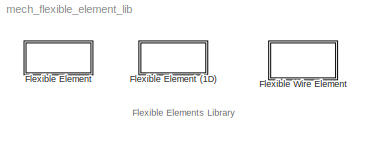
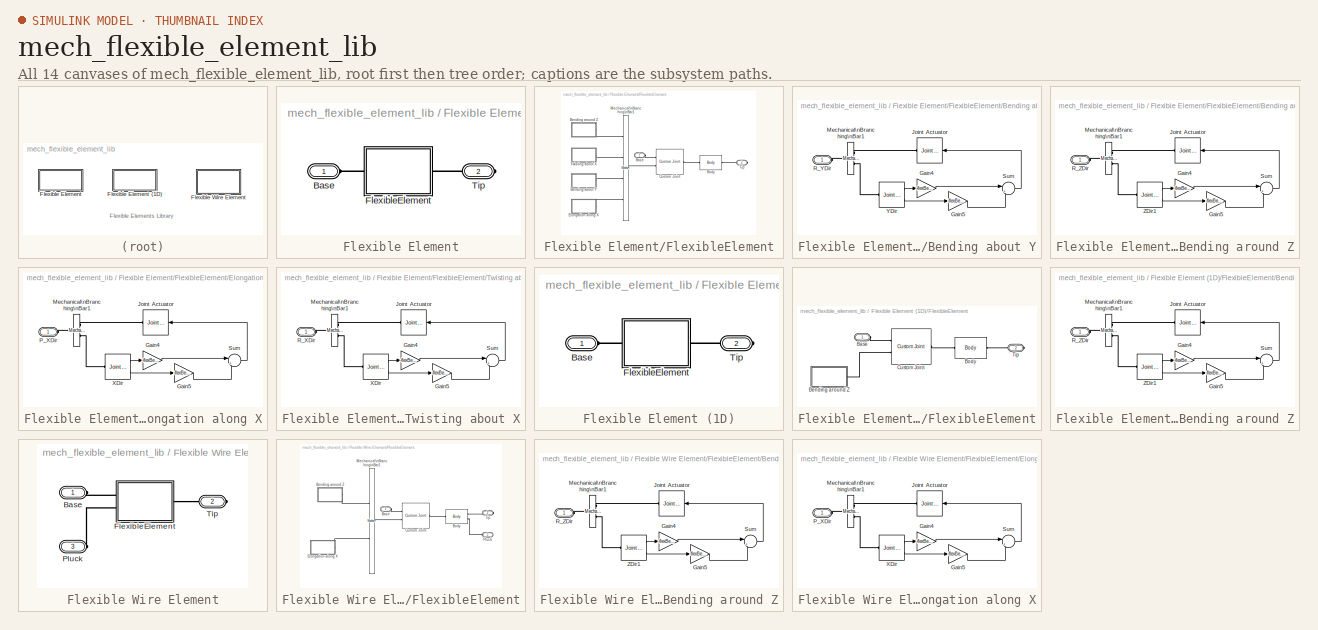
[diagram: thumbnail index - all 14 canvases of the model, root first then tree order]
MODEL mech_flexible_element_lib
KIND library
CONFIG PostLoadFcn = find_system(gcs,'FollowLinks', 'on', 'LookUnderMasks', 'all');\nlastwarn('');\nwarning(oldWarningState);
CONFIG PreLoadFcn = oldWarningState = warning('query');\nwarning('off');
BLOCK [SubSystem] Flexible Element
  FunctionWithSeparateData = off
  MaskCallbackString = |||||||||||
  MaskEnableString = on,on,on,on,on,on,on,on,on,on,on,on
  MaskHideContents = off
  MaskIconFrame = on
  MaskIconOpaque = on
  MaskIconRotate = none
  MaskIconUnits = autoscale
  MaskInitialization = flexBeamElement.material    = material;\nflexBeamElement.density     = density;\nflexBeamElement.crossArea   = crossArea;\nflexBeamElement.length      = length;\nflexBeamElement.cgLeng      = cgLeng;\nflexBeamElement.beamDir     = beamDir;\nflexBeamElement.Inertia     = Inertia;\nflexBeamElement.youngsM     = youngsM;\nflexBeamElement.shearM      = shearM;\nflexBeamElement.Ixx         = Ixx;\nflex...<+138ch>
  MaskPromptString = Beam Material|Material Density (Kg/m^3)|Area of cross-section (m^2)|Length of single element (m)|Distance of CG along length of beam element (m)|Direction of beam element (X direction will be [1 0 0])|Mass Moment of Inertia of beam element (Kg/m^2)|Youngs Modulus (N/m^2)|Shear Modulus (N/m^2)|Area Moment of Inertia along the direction of bending (m^4)|Area Moment of Inertia normal to the direction...<+48ch>
  MaskStyleString = edit,edit,edit,edit,edit,edit,edit,edit,edit,edit,edit,edit
  MaskTabNameString = ,,,,,,,,,,,
  MaskToolTipString = on,on,on,on,on,on,on,on,on,on,on,on
  MaskTunableValueString = off,on,on,on,on,on,on,on,on,on,on,on
  MaskValueString = Mild Steel|7600|1E-4|0.15|0.075|[1 0 0]|[120 0 0;0 6400.0 0;0 0 6400.0]*1E-7|200E9|26E9|8.3333e-010|8.3333e-010|0.35
  MaskVarAliasString = ,,,,,,,,,,,
  MaskVariables = material=&1;density=@2;crossArea=@3;length=@4;cgLeng=@5;beamDir=@6;Inertia=@7;youngsM=@8;shearM=@9;Ixx=@10;Iyy=@11;matDamping=@12;
  MaskVisibilityString = on,on,on,on,on,on,on,on,on,on,on,on
  MinAlgLoopOccurrences = off
  Opaque = off
  Ports = [0, 0, 0, 0, 0, 1, 1]
  PropExecContextOutsideSubsystem = off
  RTWSystemCode = Auto
  RequestExecContextInheritance = off
BLOCK [SubSystem] Flexible Element (1D)
  AncestorBlock = mech_flexible_element_lib/Flexible Element
  FunctionWithSeparateData = off
  MaskCallbackString = |||||||||||
  MaskEnableString = on,on,on,on,on,on,on,on,on,on,on,on
  MaskHideContents = off
  MaskIconFrame = on
  MaskIconOpaque = on
  MaskIconRotate = none
  MaskIconUnits = autoscale
  MaskInitialization = flexBeamElement.material    = material;\nflexBeamElement.density     = density;\nflexBeamElement.crossArea   = crossArea;\nflexBeamElement.length      = length;\nflexBeamElement.cgLeng      = cgLeng;\nflexBeamElement.beamDir     = beamDir;\nflexBeamElement.Inertia     = Inertia;\nflexBeamElement.youngsM     = youngsM;\nflexBeamElement.shearM      = shearM;\nflexBeamElement.Ixx         = Ixx;\nflex...<+138ch>
  MaskPromptString = Beam Material|Material Density (Kg/m^3)|Area of cross-section (m^2)|Length of single element (m)|Distance of CG along length of beam element (m)|Direction of beam element (X direction will be [1 0 0])|Mass Moment of Inertia of beam element (Kg/m^2)|Youngs Modulus (N/m^2)|Shear Modulus (N/m^2)|Area Moment of Inertia along the direction of bending (m^4)|Area Moment of Inertia normal to the direction...<+48ch>
  MaskStyleString = edit,edit,edit,edit,edit,edit,edit,edit,edit,edit,edit,edit
  MaskTabNameString = ,,,,,,,,,,,
  MaskToolTipString = on,on,on,on,on,on,on,on,on,on,on,on
  MaskTunableValueString = off,on,on,on,on,on,on,on,on,on,on,on
  MaskValueString = Mild Steel|7600|1E-4|0.15|0.075|[1 0 0]|[120 0 0;0 6400.0 0;0 0 6400.0]*1E-7|200E9|26E9|8.3333e-010|8.3333e-010|0.35
  MaskVarAliasString = ,,,,,,,,,,,
  MaskVariables = material=&1;density=@2;crossArea=@3;length=@4;cgLeng=@5;beamDir=@6;Inertia=@7;youngsM=@8;shearM=@9;Ixx=@10;Iyy=@11;matDamping=@12;
  MaskVisibilityString = on,on,on,on,on,on,on,on,off,on,off,on
  MinAlgLoopOccurrences = off
  Opaque = off
  Ports = [0, 0, 0, 0, 0, 1, 1]
  PropExecContextOutsideSubsystem = off
  RTWSystemCode = Auto
  RequestExecContextInheritance = off
BLOCK [PMIOPort] Flexible Element (1D)/Base
  Port = 1
  Side = Left
BLOCK [SubSystem] Flexible Element (1D)/FlexibleElement
  FunctionWithSeparateData = off
  MaskHideContents = off
  MinAlgLoopOccurrences = off
  Opaque = off
  Ports = [0, 0, 0, 0, 0, 1, 1]
  PropExecContextOutsideSubsystem = off
  RTWSystemCode = Auto
  RequestExecContextInheritance = off
BLOCK [PMIOPort] Flexible Element (1D)/FlexibleElement/Base
  Port = 1
  Side = Left
BLOCK [SubSystem] Flexible Element (1D)/FlexibleElement/Bending around Z
  FunctionWithSeparateData = off
  MaskHideContents = off
  MinAlgLoopOccurrences = off
  Opaque = off
  Ports = [0, 0, 0, 0, 0, 1]
  PropExecContextOutsideSubsystem = off
  RTWSystemCode = Auto
  RequestExecContextInheritance = off
BLOCK [Gain] Flexible Element (1D)/FlexibleElement/Bending around Z/Gain4
  Gain = -flexBeamElement.kBendingYY
  OutDataType = sfix(16)
  OutDataTypeMode = Inherit via internal rule
  OutDataTypeStr = Inherit: Inherit via internal rule
  OutScaling = 2^0
  ParamDataTypeStr = Inherit: Inherit via internal rule
  ParameterDataType = sfix(16)
  ParameterDataTypeMode = Inherit via internal rule
  ParameterScaling = 2^0
  SaturateOnIntegerOverflow = off
BLOCK [Gain] Flexible Element (1D)/FlexibleElement/Bending around Z/Gain5
  Gain = -flexBeamElement.matDamping
  OutDataType = sfix(16)
  OutDataTypeMode = Inherit via internal rule
  OutDataTypeStr = Inherit: Inherit via internal rule
  OutScaling = 2^0
  ParamDataTypeStr = Inherit: Inherit via internal rule
  ParameterDataType = sfix(16)
  ParameterDataTypeMode = Inherit via internal rule
  ParameterScaling = 2^0
  SaturateOnIntegerOverflow = off
BLOCK [Reference] Flexible Element (1D)/FlexibleElement/Bending around Z/Joint Actuator  REF=mblibv1/Sensors & \nActuators/Joint Actuator
  AccelerationUnits = m/s^2
  ActiveIO = off
  ActuationStyle = Force
  AngleUnits = deg
  ArcAccelerationUnits = deg/s^2
  ArcVelocityUnits = deg/s
  ClassName = JointActuator
  CoordPositionUnits = m
  DialogClass = MechanicalActuatorBlock
  DialogController = MECH.DynMechDlgSource
  ForceUnits = N
  FunctionWithSeparateData = off
  PhysicalDomain = Mechanical
  PortType = blob
  Ports = [1, 0, 0, 0, 0, 0, 1]
  Primitive = R3
  RTWMemSecDataConstants = Inherit from model
  RTWMemSecDataInternal = Inherit from model
  RTWMemSecDataParameters = Inherit from model
  RTWMemSecFuncExecute = Inherit from model
  RTWMemSecFuncInitTerm = Inherit from model
  ReferenceFrame = Absolute (INERTIAL)
  ShowPortLabels = FromPortIcon
  SourceBlock = mblibv1/Sensors & \nActuators/Joint Actuator
  SourceType = Joint Actuator
  SystemSampleTime = -1
  TorqueUnits = N-m
  VelocityUnits = m/s
  Width = 1
BLOCK [Reference] Flexible Element (1D)/FlexibleElement/Bending around Z/Mechanical\nBranching\nBar1  REF=mblibv1/Utilities/Mechanical\nBranching\nBar
  ClassName = BranchingBar
  DialogClass = MechanicalBranchingBarBlock
  DialogController = MECH.DynMechDlgSource
  LConnTagsString = _newl0
  LeftPortType = blob
  NumSAPorts = 2
  PhysicalDomain = mechanical
  Ports = [0, 0, 0, 0, 0, 1, 2]
  RConnTagsString = SA0|SA1
  RightPortType = blob
  SourceBlock = mblibv1/Utilities/Mechanical\nBranching\nBar
  SourceType = Mechanical Branching Bar
  SubClassName = Unknown
BLOCK [PMIOPort] Flexible Element (1D)/FlexibleElement/Bending around Z/R_ZDir
  Port = 1
  Side = Left
BLOCK [Sum] Flexible Element (1D)/FlexibleElement/Bending around Z/Sum
  IconShape = round
  InputSameDT = off
  Inputs = |++
  OutDataType = sfix(16)
  OutDataTypeMode = Inherit via internal rule
  OutDataTypeStr = Inherit: Inherit via internal rule
  OutScaling = 2^0
  Ports = [2, 1]
  SaturateOnIntegerOverflow = off
BLOCK [Reference] Flexible Element (1D)/FlexibleElement/Bending around Z/ZDir1  REF=mblibv1/Sensors & \nActuators/Joint Sensor
  Acceleration = off
  AccelerationUnits = m/s^2
  ActiveIO = off
  Angle = on
  AngleUnits = rad
  ArcAcceleration = off
  ArcAccelerationUnits = deg/s^2
  ArcVelocity = on
  ArcVelocityUnits = rad/s
  ClassName = JointSensor
  CoordPosition = on
  CoordPositionUnits = m
  DialogClass = MechanicalSensorBlock
  DialogController = MECH.DynMechDlgSource
  Force = off
  ForceUnits = N
  FunctionWithSeparateData = off
  Muxed = off
  OutputVector = [ 1 1 ]
  PhysicalDomain = Mechanical
  PortType = blob
  Ports = [0, 2, 0, 0, 0, 1]
  Pose = off
  Primitive = R3
  Quaternion = on
  QuaternionDDT = off
  QuaternionDT = off
  QuaternionUnits = off
  RTWMemSecDataConstants = Inherit from model
  RTWMemSecDataInternal = Inherit from model
  RTWMemSecDataParameters = Inherit from model
  RTWMemSecFuncExecute = Inherit from model
  RTWMemSecFuncInitTerm = Inherit from model
  ReactionForce = off
  ReactionForceUnits = N
  ReactionMoment = off
  ReactionMomentUnits = N-m
  ReactionReferenceFrame = Absolute (World)
  ReactionSensedSide = Base
  ReferenceFrame = Absolute (INERTIAL)
  ShowPortLabels = FromPortIcon
  SourceBlock = mblibv1/Sensors & \nActuators/Joint Sensor
  SourceType = Joint Sensor
  SystemSampleTime = -1
  Torque = off
  TorqueUnits = N-m
  Velocity = off
  VelocityUnits = m/s
  Width = 2
BLOCK [Reference] Flexible Element (1D)/FlexibleElement/Body  REF=mblibv1/Bodies/Body
  AttachedToCS = 1
  BodyColor = [0.5 0.5 0.5]
  CG = Left$CG$flexBeamElement.cg$CS1$CS1$m$[0 0 0]$Euler X-Y-Z$deg$WORLD$false
  CGPos = flexBeamElement.cg
  CGRot = [0 0 0]
  CS0Pos = []
  CS0Rot = []
  CS10Pos = []
  CS10Rot = []
  CS11Pos = []
  CS11Rot = []
  CS12Pos = []
  CS12Rot = []
  CS13Pos = []
  CS13Rot = []
  CS14Pos = []
  CS14Rot = []
  CS15Pos = []
  CS15Rot = []
  CS16Pos = []
  CS16Rot = []
  CS17Pos = []
  CS17Rot = []
  CS18Pos = []
  CS18Rot = []
  CS19Pos = []
  CS19Rot = []
  CS1Pos = flexBeamElement.cs1
  CS1Rot = [0 0 0]
  CS20Pos = []
  CS20Rot = []
  CS2Pos = flexBeamElement.cs2
  CS2Rot = [0 0 0]
  CS3Pos = []
  CS3Rot = []
  CS4Pos = []
  CS4Rot = []
  CS5Pos = []
  CS5Rot = []
  CS6Pos = []
  CS6Rot = []
  CS7Pos = []
  CS7Rot = []
  CS8Pos = []
  CS8Rot = []
  CS9Pos = []
  CS9Rot = []
  ClassName = Body
  Density = 1
  DensityUnits = kg/m^3
  DensityUse = false
  DialogClass = MechanicalBodyBlock
  DialogController = MECH.DynMechDlgSource
  GraphicsMode = 1
  GraphicsObj = []
  Inertia = flexBeamElement.Inertia
  InertiaUnits = kg*m^2
  LConnTagsString = CS1
  LeftPortType = workingframe
  Mass = flexBeamElement.mass
  MassUnits = kg
  PhysicalDomain = mechanical
  Ports = [0, 0, 0, 0, 0, 1, 1]
  RConnTagsString = CS2
  RightPortType = workingframe
  Shape = Cylinder
  ShapeDims = [1 1]
  ShapeUnits = m
  ShapeUse = false
  SourceBlock = mblibv1/Bodies/Body
  SourceType = Body
  SubClassName = Unknown
  WorkingFrames = Left$CS1$flexBeamElement.cs1$ADJOINING$ADJOINING$m$[0 0 0]$Euler X-Y-Z$deg$WORLD$true#Right$CS2$flexBeamElement.cs2$CS1$CS1$m$[0 0 0]$Euler X-Y-Z$deg$WORLD$true
BLOCK [Reference] Flexible Element (1D)/FlexibleElement/Custom Joint  REF=mblibv1/Joints/Custom Joint
  ClassName = Joint
  CutJoint = off
  DialogClass = JointBlock
  DialogController = MECH.DynMechDlgSource
  LConnTagsString = __newl0|SA1
  LeftPortType = blob
  MarkAsCut = off
  NumSAPorts = 1
  P1Axis = []
  P2Axis = []
  P3Axis = []
  PhysicalDomain = mechanical
  Ports = [0, 0, 0, 0, 0, 2, 1]
  PrimitiveProps = R3$WORLD$flexBeamElement.zDir$revolute
  Primitives = revolute
  R1Axis = []
  R2Axis = []
  R3Axis = flexBeamElement.zDir
  RConnTagsString = __newr0
  RightPortType = blob
  SAxis = []
  SourceBlock = mblibv1/Joints/Custom Joint
  SourceType = Custom Joint
  SubClassName = custom_joint
BLOCK [PMIOPort] Flexible Element (1D)/FlexibleElement/Tip
  Port = 2
  Side = Right
BLOCK [PMIOPort] Flexible Element (1D)/Tip
  Port = 2
  Side = Right
BLOCK [PMIOPort] Flexible Element/Base
  Port = 1
  Side = Left
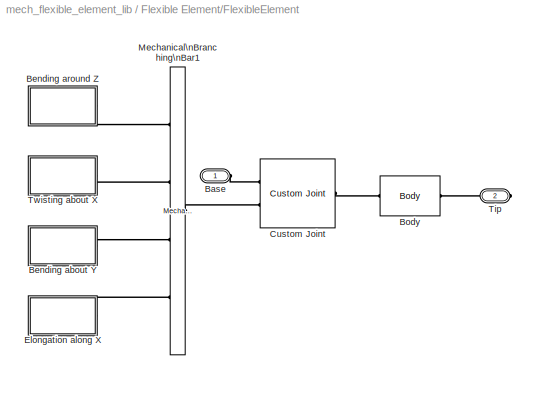
BLOCK [SubSystem] Flexible Element/FlexibleElement
  FunctionWithSeparateData = off
  MaskHideContents = off
  MinAlgLoopOccurrences = off
  Opaque = off
  Ports = [0, 0, 0, 0, 0, 1, 1]
  PropExecContextOutsideSubsystem = off
  RTWSystemCode = Auto
  RequestExecContextInheritance = off
BLOCK [PMIOPort] Flexible Element/FlexibleElement/Base
  Port = 1
  Side = Left
BLOCK [SubSystem] Flexible Element/FlexibleElement/Bending about Y
  FunctionWithSeparateData = off
  MaskHideContents = off
  MinAlgLoopOccurrences = off
  Opaque = off
  Ports = [0, 0, 0, 0, 0, 1]
  PropExecContextOutsideSubsystem = off
  RTWSystemCode = Auto
  RequestExecContextInheritance = off
BLOCK [Gain] Flexible Element/FlexibleElement/Bending about Y/Gain4
  Gain = -flexBeamElement.kBendingXX
  OutDataType = sfix(16)
  OutDataTypeMode = Inherit via internal rule
  OutDataTypeStr = Inherit: Inherit via internal rule
  OutScaling = 2^0
  ParamDataTypeStr = Inherit: Inherit via internal rule
  ParameterDataType = sfix(16)
  ParameterDataTypeMode = Inherit via internal rule
  ParameterScaling = 2^0
  SaturateOnIntegerOverflow = off
BLOCK [Gain] Flexible Element/FlexibleElement/Bending about Y/Gain5
  Gain = -flexBeamElement.matDamping
  OutDataType = sfix(16)
  OutDataTypeMode = Inherit via internal rule
  OutDataTypeStr = Inherit: Inherit via internal rule
  OutScaling = 2^0
  ParamDataTypeStr = Inherit: Inherit via internal rule
  ParameterDataType = sfix(16)
  ParameterDataTypeMode = Inherit via internal rule
  ParameterScaling = 2^0
  SaturateOnIntegerOverflow = off
BLOCK [Reference] Flexible Element/FlexibleElement/Bending about Y/Joint Actuator  REF=mblibv1/Sensors & \nActuators/Joint Actuator
  AccelerationUnits = m/s^2
  ActiveIO = off
  ActuationStyle = Force
  AngleUnits = deg
  ArcAccelerationUnits = deg/s^2
  ArcVelocityUnits = deg/s
  ClassName = JointActuator
  CoordPositionUnits = m
  DialogClass = MechanicalActuatorBlock
  DialogController = MECH.DynMechDlgSource
  ForceUnits = N
  FunctionWithSeparateData = off
  PhysicalDomain = Mechanical
  PortType = blob
  Ports = [1, 0, 0, 0, 0, 0, 1]
  Primitive = R2
  RTWMemSecDataConstants = Inherit from model
  RTWMemSecDataInternal = Inherit from model
  RTWMemSecDataParameters = Inherit from model
  RTWMemSecFuncExecute = Inherit from model
  RTWMemSecFuncInitTerm = Inherit from model
  ReferenceFrame = Absolute (INERTIAL)
  ShowPortLabels = FromPortIcon
  SourceBlock = mblibv1/Sensors & \nActuators/Joint Actuator
  SourceType = Joint Actuator
  SystemSampleTime = -1
  TorqueUnits = N-m
  VelocityUnits = m/s
  Width = 1
BLOCK [Reference] Flexible Element/FlexibleElement/Bending about Y/Mechanical\nBranching\nBar1  REF=mblibv1/Utilities/Mechanical\nBranching\nBar
  ClassName = BranchingBar
  DialogClass = MechanicalBranchingBarBlock
  DialogController = MECH.DynMechDlgSource
  LConnTagsString = _newl0
  LeftPortType = blob
  NumSAPorts = 2
  PhysicalDomain = mechanical
  Ports = [0, 0, 0, 0, 0, 1, 2]
  RConnTagsString = SA0|SA1
  RightPortType = blob
  SourceBlock = mblibv1/Utilities/Mechanical\nBranching\nBar
  SourceType = Mechanical Branching Bar
  SubClassName = Unknown
BLOCK [PMIOPort] Flexible Element/FlexibleElement/Bending about Y/R_YDir
  Port = 1
  Side = Left
BLOCK [Sum] Flexible Element/FlexibleElement/Bending about Y/Sum
  IconShape = round
  InputSameDT = off
  Inputs = |++
  OutDataType = sfix(16)
  OutDataTypeMode = Inherit via internal rule
  OutDataTypeStr = Inherit: Inherit via internal rule
  OutScaling = 2^0
  Ports = [2, 1]
  SaturateOnIntegerOverflow = off
BLOCK [Reference] Flexible Element/FlexibleElement/Bending about Y/YDir  REF=mblibv1/Sensors & \nActuators/Joint Sensor
  Acceleration = off
  AccelerationUnits = m/s^2
  ActiveIO = off
  Angle = on
  AngleUnits = rad
  ArcAcceleration = off
  ArcAccelerationUnits = deg/s^2
  ArcVelocity = on
  ArcVelocityUnits = rad/s
  ClassName = JointSensor
  CoordPosition = on
  CoordPositionUnits = m
  DialogClass = MechanicalSensorBlock
  DialogController = MECH.DynMechDlgSource
  Force = off
  ForceUnits = N
  FunctionWithSeparateData = off
  Muxed = off
  OutputVector = [ 1 1 ]
  PhysicalDomain = Mechanical
  PortType = blob
  Ports = [0, 2, 0, 0, 0, 1]
  Pose = off
  Primitive = R2
  Quaternion = on
  QuaternionDDT = off
  QuaternionDT = off
  QuaternionUnits = off
  RTWMemSecDataConstants = Inherit from model
  RTWMemSecDataInternal = Inherit from model
  RTWMemSecDataParameters = Inherit from model
  RTWMemSecFuncExecute = Inherit from model
  RTWMemSecFuncInitTerm = Inherit from model
  ReactionForce = off
  ReactionForceUnits = N
  ReactionMoment = off
  ReactionMomentUnits = N-m
  ReactionReferenceFrame = Absolute (World)
  ReactionSensedSide = Base
  ReferenceFrame = Absolute (INERTIAL)
  ShowPortLabels = FromPortIcon
  SourceBlock = mblibv1/Sensors & \nActuators/Joint Sensor
  SourceType = Joint Sensor
  SystemSampleTime = -1
  Torque = off
  TorqueUnits = N-m
  Velocity = off
  VelocityUnits = m/s
  Width = 2
BLOCK [SubSystem] Flexible Element/FlexibleElement/Bending around Z
  FunctionWithSeparateData = off
  MaskHideContents = off
  MinAlgLoopOccurrences = off
  Opaque = off
  Ports = [0, 0, 0, 0, 0, 1]
  PropExecContextOutsideSubsystem = off
  RTWSystemCode = Auto
  RequestExecContextInheritance = off
BLOCK [Gain] Flexible Element/FlexibleElement/Bending around Z/Gain4
  Gain = -flexBeamElement.kBendingYY
  OutDataType = sfix(16)
  OutDataTypeMode = Inherit via internal rule
  OutDataTypeStr = Inherit: Inherit via internal rule
  OutScaling = 2^0
  ParamDataTypeStr = Inherit: Inherit via internal rule
  ParameterDataType = sfix(16)
  ParameterDataTypeMode = Inherit via internal rule
  ParameterScaling = 2^0
  SaturateOnIntegerOverflow = off
BLOCK [Gain] Flexible Element/FlexibleElement/Bending around Z/Gain5
  Gain = -flexBeamElement.matDamping
  OutDataType = sfix(16)
  OutDataTypeMode = Inherit via internal rule
  OutDataTypeStr = Inherit: Inherit via internal rule
  OutScaling = 2^0
  ParamDataTypeStr = Inherit: Inherit via internal rule
  ParameterDataType = sfix(16)
  ParameterDataTypeMode = Inherit via internal rule
  ParameterScaling = 2^0
  SaturateOnIntegerOverflow = off
BLOCK [Reference] Flexible Element/FlexibleElement/Bending around Z/Joint Actuator  REF=mblibv1/Sensors & \nActuators/Joint Actuator
  AccelerationUnits = m/s^2
  ActiveIO = off
  ActuationStyle = Force
  AngleUnits = deg
  ArcAccelerationUnits = deg/s^2
  ArcVelocityUnits = deg/s
  ClassName = JointActuator
  CoordPositionUnits = m
  DialogClass = MechanicalActuatorBlock
  DialogController = MECH.DynMechDlgSource
  ForceUnits = N
  FunctionWithSeparateData = off
  PhysicalDomain = Mechanical
  PortType = blob
  Ports = [1, 0, 0, 0, 0, 0, 1]
  Primitive = R3
  RTWMemSecDataConstants = Inherit from model
  RTWMemSecDataInternal = Inherit from model
  RTWMemSecDataParameters = Inherit from model
  RTWMemSecFuncExecute = Inherit from model
  RTWMemSecFuncInitTerm = Inherit from model
  ReferenceFrame = Absolute (INERTIAL)
  ShowPortLabels = FromPortIcon
  SourceBlock = mblibv1/Sensors & \nActuators/Joint Actuator
  SourceType = Joint Actuator
  SystemSampleTime = -1
  TorqueUnits = N-m
  VelocityUnits = m/s
  Width = 1
BLOCK [Reference] Flexible Element/FlexibleElement/Bending around Z/Mechanical\nBranching\nBar1  REF=mblibv1/Utilities/Mechanical\nBranching\nBar
  ClassName = BranchingBar
  DialogClass = MechanicalBranchingBarBlock
  DialogController = MECH.DynMechDlgSource
  LConnTagsString = _newl0
  LeftPortType = blob
  NumSAPorts = 2
  PhysicalDomain = mechanical
  Ports = [0, 0, 0, 0, 0, 1, 2]
  RConnTagsString = SA0|SA1
  RightPortType = blob
  SourceBlock = mblibv1/Utilities/Mechanical\nBranching\nBar
  SourceType = Mechanical Branching Bar
  SubClassName = Unknown
BLOCK [PMIOPort] Flexible Element/FlexibleElement/Bending around Z/R_ZDir
  Port = 1
  Side = Left
BLOCK [Sum] Flexible Element/FlexibleElement/Bending around Z/Sum
  IconShape = round
  InputSameDT = off
  Inputs = |++
  OutDataType = sfix(16)
  OutDataTypeMode = Inherit via internal rule
  OutDataTypeStr = Inherit: Inherit via internal rule
  OutScaling = 2^0
  Ports = [2, 1]
  SaturateOnIntegerOverflow = off
BLOCK [Reference] Flexible Element/FlexibleElement/Bending around Z/ZDir1  REF=mblibv1/Sensors & \nActuators/Joint Sensor
  Acceleration = off
  AccelerationUnits = m/s^2
  ActiveIO = off
  Angle = on
  AngleUnits = rad
  ArcAcceleration = off
  ArcAccelerationUnits = deg/s^2
  ArcVelocity = on
  ArcVelocityUnits = rad/s
  ClassName = JointSensor
  CoordPosition = on
  CoordPositionUnits = m
  DialogClass = MechanicalSensorBlock
  DialogController = MECH.DynMechDlgSource
  Force = off
  ForceUnits = N
  FunctionWithSeparateData = off
  Muxed = off
  OutputVector = [ 1 1 ]
  PhysicalDomain = Mechanical
  PortType = blob
  Ports = [0, 2, 0, 0, 0, 1]
  Pose = off
  Primitive = R3
  Quaternion = on
  QuaternionDDT = off
  QuaternionDT = off
  QuaternionUnits = off
  RTWMemSecDataConstants = Inherit from model
  RTWMemSecDataInternal = Inherit from model
  RTWMemSecDataParameters = Inherit from model
  RTWMemSecFuncExecute = Inherit from model
  RTWMemSecFuncInitTerm = Inherit from model
  ReactionForce = off
  ReactionForceUnits = N
  ReactionMoment = off
  ReactionMomentUnits = N-m
  ReactionReferenceFrame = Absolute (World)
  ReactionSensedSide = Base
  ReferenceFrame = Absolute (INERTIAL)
  ShowPortLabels = FromPortIcon
  SourceBlock = mblibv1/Sensors & \nActuators/Joint Sensor
  SourceType = Joint Sensor
  SystemSampleTime = -1
  Torque = off
  TorqueUnits = N-m
  Velocity = off
  VelocityUnits = m/s
  Width = 2
BLOCK [Reference] Flexible Element/FlexibleElement/Body  REF=mblibv1/Bodies/Body
  AttachedToCS = 1
  BodyColor = [0.5 0.5 0.5]
  CG = Left$CG$flexBeamElement.cg$CS1$CS1$m$[0 0 0]$Euler X-Y-Z$deg$WORLD$false
  CGPos = flexBeamElement.cg
  CGRot = [0 0 0]
  CS0Pos = []
  CS0Rot = []
  CS10Pos = []
  CS10Rot = []
  CS11Pos = []
  CS11Rot = []
  CS12Pos = []
  CS12Rot = []
  CS13Pos = []
  CS13Rot = []
  CS14Pos = []
  CS14Rot = []
  CS15Pos = []
  CS15Rot = []
  CS16Pos = []
  CS16Rot = []
  CS17Pos = []
  CS17Rot = []
  CS18Pos = []
  CS18Rot = []
  CS19Pos = []
  CS19Rot = []
  CS1Pos = flexBeamElement.cs1
  CS1Rot = [0 0 0]
  CS20Pos = []
  CS20Rot = []
  CS2Pos = flexBeamElement.cs2
  CS2Rot = [0 0 0]
  CS3Pos = []
  CS3Rot = []
  CS4Pos = []
  CS4Rot = []
  CS5Pos = []
  CS5Rot = []
  CS6Pos = []
  CS6Rot = []
  CS7Pos = []
  CS7Rot = []
  CS8Pos = []
  CS8Rot = []
  CS9Pos = []
  CS9Rot = []
  ClassName = Body
  Density = 1
  DensityUnits = kg/m^3
  DensityUse = false
  DialogClass = MechanicalBodyBlock
  DialogController = MECH.DynMechDlgSource
  GraphicsMode = 1
  GraphicsObj = []
  Inertia = flexBeamElement.Inertia
  InertiaUnits = kg*m^2
  LConnTagsString = CS1
  LeftPortType = workingframe
  Mass = flexBeamElement.mass
  MassUnits = kg
  PhysicalDomain = mechanical
  Ports = [0, 0, 0, 0, 0, 1, 1]
  RConnTagsString = CS2
  RightPortType = workingframe
  Shape = Cylinder
  ShapeDims = [1 1]
  ShapeUnits = m
  ShapeUse = false
  SourceBlock = mblibv1/Bodies/Body
  SourceType = Body
  SubClassName = Unknown
  WorkingFrames = Left$CS1$flexBeamElement.cs1$ADJOINING$ADJOINING$m$[0 0 0]$Euler X-Y-Z$deg$WORLD$true#Right$CS2$flexBeamElement.cs2$CS1$CS1$m$[0 0 0]$Euler X-Y-Z$deg$WORLD$true
BLOCK [Reference] Flexible Element/FlexibleElement/Custom Joint  REF=mblibv1/Joints/Custom Joint
  ClassName = Joint
  CutJoint = off
  DialogClass = JointBlock
  DialogController = MECH.DynMechDlgSource
  LConnTagsString = __newl0|SA1
  LeftPortType = blob
  MarkAsCut = off
  NumSAPorts = 1
  P1Axis = flexBeamElement.xDir
  P2Axis = []
  P3Axis = []
  PhysicalDomain = mechanical
  Ports = [0, 0, 0, 0, 0, 2, 1]
  PrimitiveProps = R3$WORLD$flexBeamElement.zDir$revolute#R1$WORLD$flexBeamElement.xDir$revolute#R2$WORLD$flexBeamElement.yDir$revolute#P1$WORLD$flexBeamElement.xDir$prismatic
  Primitives = revolute_revolute_revolute_prismatic
  R1Axis = flexBeamElement.xDir
  R2Axis = flexBeamElement.yDir
  R3Axis = flexBeamElement.zDir
  RConnTagsString = __newr0
  RightPortType = blob
  SAxis = []
  SourceBlock = mblibv1/Joints/Custom Joint
  SourceType = Custom Joint
  SubClassName = custom_joint
BLOCK [SubSystem] Flexible Element/FlexibleElement/Elongation along X
  FunctionWithSeparateData = off
  MaskHideContents = off
  MinAlgLoopOccurrences = off
  Opaque = off
  Ports = [0, 0, 0, 0, 0, 1]
  PropExecContextOutsideSubsystem = off
  RTWSystemCode = Auto
  RequestExecContextInheritance = off
BLOCK [Gain] Flexible Element/FlexibleElement/Elongation along X/Gain4
  Gain = -flexBeamElement.kElong
  OutDataType = sfix(16)
  OutDataTypeMode = Inherit via internal rule
  OutDataTypeStr = Inherit: Inherit via internal rule
  OutScaling = 2^0
  ParamDataTypeStr = Inherit: Inherit via internal rule
  ParameterDataType = sfix(16)
  ParameterDataTypeMode = Inherit via internal rule
  ParameterScaling = 2^0
  SaturateOnIntegerOverflow = off
BLOCK [Gain] Flexible Element/FlexibleElement/Elongation along X/Gain5
  Gain = -flexBeamElement.matDamping
  OutDataType = sfix(16)
  OutDataTypeMode = Inherit via internal rule
  OutDataTypeStr = Inherit: Inherit via internal rule
  OutScaling = 2^0
  ParamDataTypeStr = Inherit: Inherit via internal rule
  ParameterDataType = sfix(16)
  ParameterDataTypeMode = Inherit via internal rule
  ParameterScaling = 2^0
  SaturateOnIntegerOverflow = off
BLOCK [Reference] Flexible Element/FlexibleElement/Elongation along X/Joint Actuator  REF=mblibv1/Sensors & \nActuators/Joint Actuator
  AccelerationUnits = m/s^2
  ActiveIO = off
  ActuationStyle = Force
  AngleUnits = deg
  ArcAccelerationUnits = deg/s^2
  ArcVelocityUnits = deg/s
  ClassName = JointActuator
  CoordPositionUnits = m
  DialogClass = MechanicalActuatorBlock
  DialogController = MECH.DynMechDlgSource
  ForceUnits = N
  FunctionWithSeparateData = off
  PhysicalDomain = Mechanical
  PortType = blob
  Ports = [1, 0, 0, 0, 0, 0, 1]
  Primitive = P1
  RTWMemSecDataConstants = Inherit from model
  RTWMemSecDataInternal = Inherit from model
  RTWMemSecDataParameters = Inherit from model
  RTWMemSecFuncExecute = Inherit from model
  RTWMemSecFuncInitTerm = Inherit from model
  ReferenceFrame = Absolute (INERTIAL)
  ShowPortLabels = FromPortIcon
  SourceBlock = mblibv1/Sensors & \nActuators/Joint Actuator
  SourceType = Joint Actuator
  SystemSampleTime = -1
  TorqueUnits = N-m
  VelocityUnits = m/s
  Width = 1
BLOCK [Reference] Flexible Element/FlexibleElement/Elongation along X/Mechanical\nBranching\nBar1  REF=mblibv1/Utilities/Mechanical\nBranching\nBar
  ClassName = BranchingBar
  DialogClass = MechanicalBranchingBarBlock
  DialogController = MECH.DynMechDlgSource
  LConnTagsString = _newl0
  LeftPortType = blob
  NumSAPorts = 2
  PhysicalDomain = mechanical
  Ports = [0, 0, 0, 0, 0, 1, 2]
  RConnTagsString = SA0|SA1
  RightPortType = blob
  SourceBlock = mblibv1/Utilities/Mechanical\nBranching\nBar
  SourceType = Mechanical Branching Bar
  SubClassName = Unknown
BLOCK [PMIOPort] Flexible Element/FlexibleElement/Elongation along X/P_XDir
  Port = 1
  Side = Left
BLOCK [Sum] Flexible Element/FlexibleElement/Elongation along X/Sum
  IconShape = round
  InputSameDT = off
  Inputs = |++
  OutDataType = sfix(16)
  OutDataTypeMode = Inherit via internal rule
  OutDataTypeStr = Inherit: Inherit via internal rule
  OutScaling = 2^0
  Ports = [2, 1]
  SaturateOnIntegerOverflow = off
BLOCK [Reference] Flexible Element/FlexibleElement/Elongation along X/XDir  REF=mblibv1/Sensors & \nActuators/Joint Sensor
  Acceleration = off
  AccelerationUnits = m/s^2
  ActiveIO = off
  Angle = on
  AngleUnits = rad
  ArcAcceleration = off
  ArcAccelerationUnits = deg/s^2
  ArcVelocity = on
  ArcVelocityUnits = rad/s
  ClassName = JointSensor
  CoordPosition = on
  CoordPositionUnits = m
  DialogClass = MechanicalSensorBlock
  DialogController = MECH.DynMechDlgSource
  Force = off
  ForceUnits = N
  FunctionWithSeparateData = off
  Muxed = off
  OutputVector = [ 1 1 ]
  PhysicalDomain = Mechanical
  PortType = blob
  Ports = [0, 2, 0, 0, 0, 1]
  Pose = off
  Primitive = P1
  Quaternion = on
  QuaternionDDT = off
  QuaternionDT = off
  QuaternionUnits = off
  RTWMemSecDataConstants = Inherit from model
  RTWMemSecDataInternal = Inherit from model
  RTWMemSecDataParameters = Inherit from model
  RTWMemSecFuncExecute = Inherit from model
  RTWMemSecFuncInitTerm = Inherit from model
  ReactionForce = off
  ReactionForceUnits = N
  ReactionMoment = off
  ReactionMomentUnits = N-m
  ReactionReferenceFrame = Absolute (World)
  ReactionSensedSide = Base
  ReferenceFrame = Absolute (INERTIAL)
  ShowPortLabels = FromPortIcon
  SourceBlock = mblibv1/Sensors & \nActuators/Joint Sensor
  SourceType = Joint Sensor
  SystemSampleTime = -1
  Torque = off
  TorqueUnits = N-m
  Velocity = on
  VelocityUnits = m/s
  Width = 2
BLOCK [Reference] Flexible Element/FlexibleElement/Mechanical\nBranching\nBar1  REF=mblibv1/Utilities/Mechanical\nBranching\nBar
  ClassName = BranchingBar
  DialogClass = MechanicalBranchingBarBlock
  DialogController = MECH.DynMechDlgSource
  LConnTagsString = _newl0
  LeftPortType = blob
  NumSAPorts = 4
  PhysicalDomain = mechanical
  Ports = [0, 0, 0, 0, 0, 1, 4]
  RConnTagsString = SA0|SA1|SA2|SA3
  RightPortType = blob
  SourceBlock = mblibv1/Utilities/Mechanical\nBranching\nBar
  SourceType = Mechanical Branching Bar
  SubClassName = Unknown
BLOCK [PMIOPort] Flexible Element/FlexibleElement/Tip
  Port = 2
  Side = Right
BLOCK [SubSystem] Flexible Element/FlexibleElement/Twisting about X
  FunctionWithSeparateData = off
  MaskHideContents = off
  MinAlgLoopOccurrences = off
  Opaque = off
  Ports = [0, 0, 0, 0, 0, 1]
  PropExecContextOutsideSubsystem = off
  RTWSystemCode = Auto
  RequestExecContextInheritance = off
BLOCK [Gain] Flexible Element/FlexibleElement/Twisting about X/Gain4
  Gain = -flexBeamElement.kTwist
  OutDataType = sfix(16)
  OutDataTypeMode = Inherit via internal rule
  OutDataTypeStr = Inherit: Inherit via internal rule
  OutScaling = 2^0
  ParamDataTypeStr = Inherit: Inherit via internal rule
  ParameterDataType = sfix(16)
  ParameterDataTypeMode = Inherit via internal rule
  ParameterScaling = 2^0
  SaturateOnIntegerOverflow = off
BLOCK [Gain] Flexible Element/FlexibleElement/Twisting about X/Gain5
  Gain = -flexBeamElement.matDamping
  OutDataType = sfix(16)
  OutDataTypeMode = Inherit via internal rule
  OutDataTypeStr = Inherit: Inherit via internal rule
  OutScaling = 2^0
  ParamDataTypeStr = Inherit: Inherit via internal rule
  ParameterDataType = sfix(16)
  ParameterDataTypeMode = Inherit via internal rule
  ParameterScaling = 2^0
  SaturateOnIntegerOverflow = off
BLOCK [Reference] Flexible Element/FlexibleElement/Twisting about X/Joint Actuator  REF=mblibv1/Sensors & \nActuators/Joint Actuator
  AccelerationUnits = m/s^2
  ActiveIO = off
  ActuationStyle = Force
  AngleUnits = deg
  ArcAccelerationUnits = deg/s^2
  ArcVelocityUnits = deg/s
  ClassName = JointActuator
  CoordPositionUnits = m
  DialogClass = MechanicalActuatorBlock
  DialogController = MECH.DynMechDlgSource
  ForceUnits = N
  FunctionWithSeparateData = off
  PhysicalDomain = Mechanical
  PortType = blob
  Ports = [1, 0, 0, 0, 0, 0, 1]
  Primitive = R1
  RTWMemSecDataConstants = Inherit from model
  RTWMemSecDataInternal = Inherit from model
  RTWMemSecDataParameters = Inherit from model
  RTWMemSecFuncExecute = Inherit from model
  RTWMemSecFuncInitTerm = Inherit from model
  ReferenceFrame = Absolute (INERTIAL)
  ShowPortLabels = FromPortIcon
  SourceBlock = mblibv1/Sensors & \nActuators/Joint Actuator
  SourceType = Joint Actuator
  SystemSampleTime = -1
  TorqueUnits = N-m
  VelocityUnits = m/s
  Width = 1
BLOCK [Reference] Flexible Element/FlexibleElement/Twisting about X/Mechanical\nBranching\nBar1  REF=mblibv1/Utilities/Mechanical\nBranching\nBar
  ClassName = BranchingBar
  DialogClass = MechanicalBranchingBarBlock
  DialogController = MECH.DynMechDlgSource
  LConnTagsString = _newl0
  LeftPortType = blob
  NumSAPorts = 2
  PhysicalDomain = mechanical
  Ports = [0, 0, 0, 0, 0, 1, 2]
  RConnTagsString = SA0|SA1
  RightPortType = blob
  SourceBlock = mblibv1/Utilities/Mechanical\nBranching\nBar
  SourceType = Mechanical Branching Bar
  SubClassName = Unknown
BLOCK [PMIOPort] Flexible Element/FlexibleElement/Twisting about X/R_XDir
  Port = 1
  Side = Left
BLOCK [Sum] Flexible Element/FlexibleElement/Twisting about X/Sum
  IconShape = round
  InputSameDT = off
  Inputs = |++
  OutDataType = sfix(16)
  OutDataTypeMode = Inherit via internal rule
  OutDataTypeStr = Inherit: Inherit via internal rule
  OutScaling = 2^0
  Ports = [2, 1]
  SaturateOnIntegerOverflow = off
BLOCK [Reference] Flexible Element/FlexibleElement/Twisting about X/XDir  REF=mblibv1/Sensors & \nActuators/Joint Sensor
  Acceleration = off
  AccelerationUnits = m/s^2
  ActiveIO = off
  Angle = on
  AngleUnits = rad
  ArcAcceleration = off
  ArcAccelerationUnits = deg/s^2
  ArcVelocity = on
  ArcVelocityUnits = rad/s
  ClassName = JointSensor
  CoordPosition = on
  CoordPositionUnits = m
  DialogClass = MechanicalSensorBlock
  DialogController = MECH.DynMechDlgSource
  Force = off
  ForceUnits = N
  FunctionWithSeparateData = off
  Muxed = off
  OutputVector = [ 1 1 ]
  PhysicalDomain = Mechanical
  PortType = blob
  Ports = [0, 2, 0, 0, 0, 1]
  Pose = off
  Primitive = R1
  Quaternion = on
  QuaternionDDT = off
  QuaternionDT = off
  QuaternionUnits = off
  RTWMemSecDataConstants = Inherit from model
  RTWMemSecDataInternal = Inherit from model
  RTWMemSecDataParameters = Inherit from model
  RTWMemSecFuncExecute = Inherit from model
  RTWMemSecFuncInitTerm = Inherit from model
  ReactionForce = off
  ReactionForceUnits = N
  ReactionMoment = off
  ReactionMomentUnits = N-m
  ReactionReferenceFrame = Absolute (World)
  ReactionSensedSide = Base
  ReferenceFrame = Absolute (INERTIAL)
  ShowPortLabels = FromPortIcon
  SourceBlock = mblibv1/Sensors & \nActuators/Joint Sensor
  SourceType = Joint Sensor
  SystemSampleTime = -1
  Torque = off
  TorqueUnits = N-m
  Velocity = off
  VelocityUnits = m/s
  Width = 2
BLOCK [PMIOPort] Flexible Element/Tip
  Port = 2
  Side = Right
BLOCK [SubSystem] Flexible Wire Element
  AncestorBlock = mech_flexible_element_lib/Flexible Element
  FunctionWithSeparateData = off
  MaskCallbackString = ||||||||
  MaskDescription = The flexible wire element has a single body that has two degrees of freedom w.r.t its neighbour. It can rotate (bend) and translate along the wire direction (elongate). The material constants and wire dimensions are used to compute the stiffness and damping on these degrees of freedom.
  MaskEnableString = on,on,on,on,on,on,on,on,on
  MaskHideContents = off
  MaskIconFrame = on
  MaskIconOpaque = on
  MaskIconRotate = none
  MaskIconUnits = autoscale
  MaskInitialization = flexBeamElement.material    = material;\nflexBeamElement.density     = density;\nflexBeamElement.crossArea   = pi*wireDia^2/4;\nflexBeamElement.length      = length;\nflexBeamElement.cgLeng      = cgLeng;\nflexBeamElement.beamDir     = beamDir;\nflexBeamElement.Inertia     = Inertia;\nflexBeamElement.youngsM     = youngsM;\nflexBeamElement.shearM      = 20E9;\nflexBeamElement.Ixx         = pi*wire...<+165ch>
  MaskPromptString = Beam Material|Material Density (Kg/m^3)|Wire diameter (m)|Length of single element (m)|Distance of CG along length of beam element (m)|Direction of beam element (X direction will be [1 0 0])|Mass Moment of Inertia of beam element (Kg/m^2)|Youngs Modulus (N/m^2)|Material Dampening Coefficient
  MaskStyleString = edit,edit,edit,edit,edit,edit,edit,edit,edit
  MaskTabNameString = ,,,,,,,,
  MaskToolTipString = on,on,on,on,on,on,on,on,on
  MaskTunableValueString = off,on,on,on,on,on,on,on,on
  MaskType = Flexible wire element
  MaskValueString = Mild Steel|7600|1E-6|0.1|0.05|[1 0 0]|[0.001 0 0;0 5.0 0;0 0 5.0]*1E-7|200E9|0.1
  MaskVarAliasString = ,,,,,,,,
  MaskVariables = material=&1;density=@2;wireDia=@3;length=@4;cgLeng=@5;beamDir=@6;Inertia=@7;youngsM=@8;matDamping=@9;
  MaskVisibilityString = on,on,on,on,on,on,on,on,on
  MinAlgLoopOccurrences = off
  Opaque = off
  Ports = [0, 0, 0, 0, 0, 2, 1]
  PropExecContextOutsideSubsystem = off
  RTWSystemCode = Auto
  RequestExecContextInheritance = off
BLOCK [PMIOPort] Flexible Wire Element/Base
  Port = 1
  Side = Left
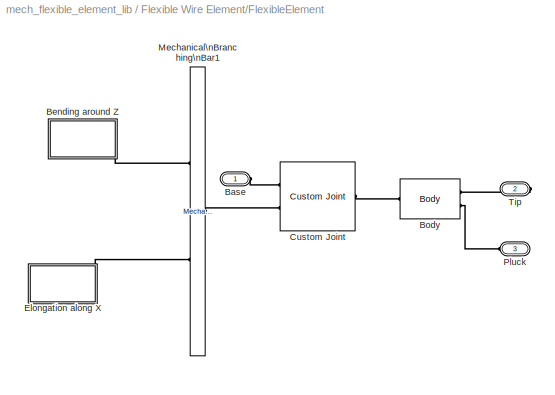
BLOCK [SubSystem] Flexible Wire Element/FlexibleElement
  FunctionWithSeparateData = off
  MaskHideContents = off
  MinAlgLoopOccurrences = off
  Opaque = off
  Ports = [0, 0, 0, 0, 0, 2, 1]
  PropExecContextOutsideSubsystem = off
  RTWSystemCode = Auto
  RequestExecContextInheritance = off
BLOCK [PMIOPort] Flexible Wire Element/FlexibleElement/Base
  Port = 1
  Side = Left
BLOCK [SubSystem] Flexible Wire Element/FlexibleElement/Bending around Z
  FunctionWithSeparateData = off
  MaskHideContents = off
  MinAlgLoopOccurrences = off
  Opaque = off
  Ports = [0, 0, 0, 0, 0, 1]
  PropExecContextOutsideSubsystem = off
  RTWSystemCode = Auto
  RequestExecContextInheritance = off
BLOCK [Gain] Flexible Wire Element/FlexibleElement/Bending around Z/Gain4
  Gain = -flexBeamElement.kBendingYY
  OutDataType = sfix(16)
  OutDataTypeMode = Inherit via internal rule
  OutDataTypeStr = Inherit: Inherit via internal rule
  OutScaling = 2^0
  ParamDataTypeStr = Inherit: Inherit via internal rule
  ParameterDataType = sfix(16)
  ParameterDataTypeMode = Inherit via internal rule
  ParameterScaling = 2^0
  SaturateOnIntegerOverflow = off
BLOCK [Gain] Flexible Wire Element/FlexibleElement/Bending around Z/Gain5
  Gain = -flexBeamElement.matDamping
  OutDataType = sfix(16)
  OutDataTypeMode = Inherit via internal rule
  OutDataTypeStr = Inherit: Inherit via internal rule
  OutScaling = 2^0
  ParamDataTypeStr = Inherit: Inherit via internal rule
  ParameterDataType = sfix(16)
  ParameterDataTypeMode = Inherit via internal rule
  ParameterScaling = 2^0
  SaturateOnIntegerOverflow = off
BLOCK [Reference] Flexible Wire Element/FlexibleElement/Bending around Z/Joint Actuator  REF=mblibv1/Sensors & \nActuators/Joint Actuator
  AccelerationUnits = m/s^2
  ActiveIO = off
  ActuationStyle = Force
  AngleUnits = deg
  ArcAccelerationUnits = deg/s^2
  ArcVelocityUnits = deg/s
  ClassName = JointActuator
  CoordPositionUnits = m
  DialogClass = MechanicalActuatorBlock
  DialogController = MECH.DynMechDlgSource
  ForceUnits = N
  FunctionWithSeparateData = off
  PhysicalDomain = Mechanical
  PortType = blob
  Ports = [1, 0, 0, 0, 0, 0, 1]
  Primitive = R3
  RTWMemSecDataConstants = Inherit from model
  RTWMemSecDataInternal = Inherit from model
  RTWMemSecDataParameters = Inherit from model
  RTWMemSecFuncExecute = Inherit from model
  RTWMemSecFuncInitTerm = Inherit from model
  ReferenceFrame = Absolute (INERTIAL)
  ShowPortLabels = FromPortIcon
  SourceBlock = mblibv1/Sensors & \nActuators/Joint Actuator
  SourceType = Joint Actuator
  SystemSampleTime = -1
  TorqueUnits = N-m
  VelocityUnits = m/s
  Width = 1
BLOCK [Reference] Flexible Wire Element/FlexibleElement/Bending around Z/Mechanical\nBranching\nBar1  REF=mblibv1/Utilities/Mechanical\nBranching\nBar
  ClassName = BranchingBar
  DialogClass = MechanicalBranchingBarBlock
  DialogController = MECH.DynMechDlgSource
  LConnTagsString = _newl0
  LeftPortType = blob
  NumSAPorts = 2
  PhysicalDomain = mechanical
  Ports = [0, 0, 0, 0, 0, 1, 2]
  RConnTagsString = SA0|SA1
  RightPortType = blob
  SourceBlock = mblibv1/Utilities/Mechanical\nBranching\nBar
  SourceType = Mechanical Branching Bar
  SubClassName = Unknown
BLOCK [PMIOPort] Flexible Wire Element/FlexibleElement/Bending around Z/R_ZDir
  Port = 1
  Side = Left
BLOCK [Sum] Flexible Wire Element/FlexibleElement/Bending around Z/Sum
  IconShape = round
  InputSameDT = off
  Inputs = |++
  OutDataType = sfix(16)
  OutDataTypeMode = Inherit via internal rule
  OutDataTypeStr = Inherit: Inherit via internal rule
  OutScaling = 2^0
  Ports = [2, 1]
  SaturateOnIntegerOverflow = off
BLOCK [Reference] Flexible Wire Element/FlexibleElement/Bending around Z/ZDir1  REF=mblibv1/Sensors & \nActuators/Joint Sensor
  Acceleration = off
  AccelerationUnits = m/s^2
  ActiveIO = off
  Angle = on
  AngleUnits = rad
  ArcAcceleration = off
  ArcAccelerationUnits = deg/s^2
  ArcVelocity = on
  ArcVelocityUnits = rad/s
  ClassName = JointSensor
  CoordPosition = on
  CoordPositionUnits = m
  DialogClass = MechanicalSensorBlock
  DialogController = MECH.DynMechDlgSource
  Force = off
  ForceUnits = N
  FunctionWithSeparateData = off
  Muxed = off
  OutputVector = [ 1 1 ]
  PhysicalDomain = Mechanical
  PortType = blob
  Ports = [0, 2, 0, 0, 0, 1]
  Pose = off
  Primitive = R3
  Quaternion = on
  QuaternionDDT = off
  QuaternionDT = off
  QuaternionUnits = off
  RTWMemSecDataConstants = Inherit from model
  RTWMemSecDataInternal = Inherit from model
  RTWMemSecDataParameters = Inherit from model
  RTWMemSecFuncExecute = Inherit from model
  RTWMemSecFuncInitTerm = Inherit from model
  ReactionForce = off
  ReactionForceUnits = N
  ReactionMoment = off
  ReactionMomentUnits = N-m
  ReactionReferenceFrame = Absolute (World)
  ReactionSensedSide = Base
  ReferenceFrame = Absolute (INERTIAL)
  ShowPortLabels = FromPortIcon
  SourceBlock = mblibv1/Sensors & \nActuators/Joint Sensor
  SourceType = Joint Sensor
  SystemSampleTime = -1
  Torque = off
  TorqueUnits = N-m
  Velocity = off
  VelocityUnits = m/s
  Width = 2
BLOCK [Reference] Flexible Wire Element/FlexibleElement/Body  REF=mblibv1/Bodies/Body
  AttachedToCS = 1
  BodyColor = [0.5 0.5 0.5]
  CG = Left$CG$flexBeamElement.cg$CS1$CS1$m$[0 0 0]$Euler X-Y-Z$deg$WORLD$false
  CGPos = flexBeamElement.cg
  CGRot = [0 0 0]
  CS0Pos = []
  CS0Rot = []
  CS10Pos = []
  CS10Rot = []
  CS11Pos = []
  CS11Rot = []
  CS12Pos = []
  CS12Rot = []
  CS13Pos = []
  CS13Rot = []
  CS14Pos = []
  CS14Rot = []
  CS15Pos = []
  CS15Rot = []
  CS16Pos = []
  CS16Rot = []
  CS17Pos = []
  CS17Rot = []
  CS18Pos = []
  CS18Rot = []
  CS19Pos = []
  CS19Rot = []
  CS1Pos = flexBeamElement.cs1
  CS1Rot = [0 0 0]
  CS20Pos = []
  CS20Rot = []
  CS2Pos = flexBeamElement.cs2
  CS2Rot = [0 0 0]
  CS3Pos = flexBeamElement.cs2
  CS3Rot = [0 0 0]
  CS4Pos = []
  CS4Rot = []
  CS5Pos = []
  CS5Rot = []
  CS6Pos = []
  CS6Rot = []
  CS7Pos = []
  CS7Rot = []
  CS8Pos = []
  CS8Rot = []
  CS9Pos = []
  CS9Rot = []
  ClassName = Body
  Density = 1
  DensityUnits = kg/m^3
  DensityUse = false
  DialogClass = MechanicalBodyBlock
  DialogController = MECH.DynMechDlgSource
  GraphicsMode = 1
  GraphicsObj = []
  Inertia = flexBeamElement.Inertia
  InertiaUnits = kg*m^2
  LConnTagsString = CS1
  LeftPortType = workingframe
  Mass = flexBeamElement.mass
  MassUnits = kg
  PhysicalDomain = mechanical
  Ports = [0, 0, 0, 0, 0, 1, 2]
  RConnTagsString = CS2|CS3
  RightPortType = workingframe
  Shape = Cylinder
  ShapeDims = [1 1]
  ShapeUnits = m
  ShapeUse = false
  SourceBlock = mblibv1/Bodies/Body
  SourceType = Body
  SubClassName = Unknown
  WorkingFrames = Left$CS1$flexBeamElement.cs1$ADJOINING$ADJOINING$m$[0 0 0]$Euler X-Y-Z$deg$WORLD$true#Right$CS2$flexBeamElement.cs2$CS1$CS1$m$[0 0 0]$Euler X-Y-Z$deg$WORLD$true#Right$CS3$flexBeamElement.cs2$CS1$CS1$m$[0 0 0]$Euler X-Y-Z$deg$WORLD$true
BLOCK [Reference] Flexible Wire Element/FlexibleElement/Custom Joint  REF=mblibv1/Joints/Custom Joint
  ClassName = Joint
  CutJoint = off
  DialogClass = JointBlock
  DialogController = MECH.DynMechDlgSource
  LConnTagsString = __newl0|SA1
  LeftPortType = blob
  MarkAsCut = off
  NumSAPorts = 1
  P1Axis = flexBeamElement.xDir
  P2Axis = []
  P3Axis = []
  PhysicalDomain = mechanical
  Ports = [0, 0, 0, 0, 0, 2, 1]
  PrimitiveProps = R3$WORLD$flexBeamElement.zDir$revolute#P1$WORLD$flexBeamElement.xDir$prismatic
  Primitives = revolute_prismatic
  R1Axis = []
  R2Axis = []
  R3Axis = flexBeamElement.zDir
  RConnTagsString = __newr0
  RightPortType = blob
  SAxis = []
  SourceBlock = mblibv1/Joints/Custom Joint
  SourceType = Custom Joint
  SubClassName = custom_joint
BLOCK [SubSystem] Flexible Wire Element/FlexibleElement/Elongation along X
  FunctionWithSeparateData = off
  MaskHideContents = off
  MinAlgLoopOccurrences = off
  Opaque = off
  Ports = [0, 0, 0, 0, 0, 1]
  PropExecContextOutsideSubsystem = off
  RTWSystemCode = Auto
  RequestExecContextInheritance = off
BLOCK [Gain] Flexible Wire Element/FlexibleElement/Elongation along X/Gain4
  Gain = -flexBeamElement.kElong
  OutDataType = sfix(16)
  OutDataTypeMode = Inherit via internal rule
  OutDataTypeStr = Inherit: Inherit via internal rule
  OutScaling = 2^0
  ParamDataTypeStr = Inherit: Inherit via internal rule
  ParameterDataType = sfix(16)
  ParameterDataTypeMode = Inherit via internal rule
  ParameterScaling = 2^0
  SaturateOnIntegerOverflow = off
BLOCK [Gain] Flexible Wire Element/FlexibleElement/Elongation along X/Gain5
  Gain = -flexBeamElement.matDamping
  OutDataType = sfix(16)
  OutDataTypeMode = Inherit via internal rule
  OutDataTypeStr = Inherit: Inherit via internal rule
  OutScaling = 2^0
  ParamDataTypeStr = Inherit: Inherit via internal rule
  ParameterDataType = sfix(16)
  ParameterDataTypeMode = Inherit via internal rule
  ParameterScaling = 2^0
  SaturateOnIntegerOverflow = off
BLOCK [Reference] Flexible Wire Element/FlexibleElement/Elongation along X/Joint Actuator  REF=mblibv1/Sensors & \nActuators/Joint Actuator
  AccelerationUnits = m/s^2
  ActiveIO = off
  ActuationStyle = Force
  AngleUnits = deg
  ArcAccelerationUnits = deg/s^2
  ArcVelocityUnits = deg/s
  ClassName = JointActuator
  CoordPositionUnits = m
  DialogClass = MechanicalActuatorBlock
  DialogController = MECH.DynMechDlgSource
  ForceUnits = N
  FunctionWithSeparateData = off
  PhysicalDomain = Mechanical
  PortType = blob
  Ports = [1, 0, 0, 0, 0, 0, 1]
  Primitive = P1
  RTWMemSecDataConstants = Inherit from model
  RTWMemSecDataInternal = Inherit from model
  RTWMemSecDataParameters = Inherit from model
  RTWMemSecFuncExecute = Inherit from model
  RTWMemSecFuncInitTerm = Inherit from model
  ReferenceFrame = Absolute (INERTIAL)
  ShowPortLabels = FromPortIcon
  SourceBlock = mblibv1/Sensors & \nActuators/Joint Actuator
  SourceType = Joint Actuator
  SystemSampleTime = -1
  TorqueUnits = N-m
  VelocityUnits = m/s
  Width = 1
BLOCK [Reference] Flexible Wire Element/FlexibleElement/Elongation along X/Mechanical\nBranching\nBar1  REF=mblibv1/Utilities/Mechanical\nBranching\nBar
  ClassName = BranchingBar
  DialogClass = MechanicalBranchingBarBlock
  DialogController = MECH.DynMechDlgSource
  LConnTagsString = _newl0
  LeftPortType = blob
  NumSAPorts = 2
  PhysicalDomain = mechanical
  Ports = [0, 0, 0, 0, 0, 1, 2]
  RConnTagsString = SA0|SA1
  RightPortType = blob
  SourceBlock = mblibv1/Utilities/Mechanical\nBranching\nBar
  SourceType = Mechanical Branching Bar
  SubClassName = Unknown
BLOCK [PMIOPort] Flexible Wire Element/FlexibleElement/Elongation along X/P_XDir
  Port = 1
  Side = Left
BLOCK [Sum] Flexible Wire Element/FlexibleElement/Elongation along X/Sum
  IconShape = round
  InputSameDT = off
  Inputs = |++
  OutDataType = sfix(16)
  OutDataTypeMode = Inherit via internal rule
  OutDataTypeStr = Inherit: Inherit via internal rule
  OutScaling = 2^0
  Ports = [2, 1]
  SaturateOnIntegerOverflow = off
BLOCK [Reference] Flexible Wire Element/FlexibleElement/Elongation along X/XDir  REF=mblibv1/Sensors & \nActuators/Joint Sensor
  Acceleration = off
  AccelerationUnits = m/s^2
  ActiveIO = off
  Angle = on
  AngleUnits = rad
  ArcAcceleration = off
  ArcAccelerationUnits = deg/s^2
  ArcVelocity = on
  ArcVelocityUnits = rad/s
  ClassName = JointSensor
  CoordPosition = on
  CoordPositionUnits = m
  DialogClass = MechanicalSensorBlock
  DialogController = MECH.DynMechDlgSource
  Force = off
  ForceUnits = N
  FunctionWithSeparateData = off
  Muxed = off
  OutputVector = [ 1 1 ]
  PhysicalDomain = Mechanical
  PortType = blob
  Ports = [0, 2, 0, 0, 0, 1]
  Pose = off
  Primitive = P1
  Quaternion = on
  QuaternionDDT = off
  QuaternionDT = off
  QuaternionUnits = off
  RTWMemSecDataConstants = Inherit from model
  RTWMemSecDataInternal = Inherit from model
  RTWMemSecDataParameters = Inherit from model
  RTWMemSecFuncExecute = Inherit from model
  RTWMemSecFuncInitTerm = Inherit from model
  ReactionForce = off
  ReactionForceUnits = N
  ReactionMoment = off
  ReactionMomentUnits = N-m
  ReactionReferenceFrame = Absolute (World)
  ReactionSensedSide = Base
  ReferenceFrame = Absolute (INERTIAL)
  ShowPortLabels = FromPortIcon
  SourceBlock = mblibv1/Sensors & \nActuators/Joint Sensor
  SourceType = Joint Sensor
  SystemSampleTime = -1
  Torque = off
  TorqueUnits = N-m
  Velocity = on
  VelocityUnits = m/s
  Width = 2
BLOCK [Reference] Flexible Wire Element/FlexibleElement/Mechanical\nBranching\nBar1  REF=mblibv1/Utilities/Mechanical\nBranching\nBar
  ClassName = BranchingBar
  DialogClass = MechanicalBranchingBarBlock
  DialogController = MECH.DynMechDlgSource
  LConnTagsString = _newl0
  LeftPortType = blob
  NumSAPorts = 2
  PhysicalDomain = mechanical
  Ports = [0, 0, 0, 0, 0, 1, 2]
  RConnTagsString = SA0|SA1
  RightPortType = blob
  SourceBlock = mblibv1/Utilities/Mechanical\nBranching\nBar
  SourceType = Mechanical Branching Bar
  SubClassName = Unknown
BLOCK [PMIOPort] Flexible Wire Element/FlexibleElement/Pluck
  Port = 3
  Side = Left
BLOCK [PMIOPort] Flexible Wire Element/FlexibleElement/Tip
  Port = 2
  Side = Right
BLOCK [PMIOPort] Flexible Wire Element/Pluck
  Port = 3
  Side = Left
BLOCK [PMIOPort] Flexible Wire Element/Tip
  Port = 2
  Side = Right
ANNOTATION (root): Flexible Elements Library
LINE Flexible Element (1D)/FlexibleElement/Bending around Z/Gain4:1 -> Flexible Element (1D)/FlexibleElement/Bending around Z/Sum:1
LINE Flexible Element (1D)/FlexibleElement/Bending around Z/Gain5:1 -> Flexible Element (1D)/FlexibleElement/Bending around Z/Sum:2
LINE Flexible Element (1D)/FlexibleElement/Bending around Z/Sum:1 -> Flexible Element (1D)/FlexibleElement/Bending around Z/Joint Actuator:1
LINE Flexible Element (1D)/FlexibleElement/Bending around Z/ZDir1:1 -> Flexible Element (1D)/FlexibleElement/Bending around Z/Gain4:1
LINE Flexible Element (1D)/FlexibleElement/Bending around Z/ZDir1:2 -> Flexible Element (1D)/FlexibleElement/Bending around Z/Gain5:1
LINE Flexible Element/FlexibleElement/Bending about Y/Gain4:1 -> Flexible Element/FlexibleElement/Bending about Y/Sum:1
LINE Flexible Element/FlexibleElement/Bending about Y/Gain5:1 -> Flexible Element/FlexibleElement/Bending about Y/Sum:2
LINE Flexible Element/FlexibleElement/Bending about Y/Sum:1 -> Flexible Element/FlexibleElement/Bending about Y/Joint Actuator:1
LINE Flexible Element/FlexibleElement/Bending about Y/YDir:1 -> Flexible Element/FlexibleElement/Bending about Y/Gain4:1
LINE Flexible Element/FlexibleElement/Bending about Y/YDir:2 -> Flexible Element/FlexibleElement/Bending about Y/Gain5:1
LINE Flexible Element/FlexibleElement/Bending around Z/Gain4:1 -> Flexible Element/FlexibleElement/Bending around Z/Sum:1
LINE Flexible Element/FlexibleElement/Bending around Z/Gain5:1 -> Flexible Element/FlexibleElement/Bending around Z/Sum:2
LINE Flexible Element/FlexibleElement/Bending around Z/Sum:1 -> Flexible Element/FlexibleElement/Bending around Z/Joint Actuator:1
LINE Flexible Element/FlexibleElement/Bending around Z/ZDir1:1 -> Flexible Element/FlexibleElement/Bending around Z/Gain4:1
LINE Flexible Element/FlexibleElement/Bending around Z/ZDir1:2 -> Flexible Element/FlexibleElement/Bending around Z/Gain5:1
LINE Flexible Element/FlexibleElement/Elongation along X/Gain4:1 -> Flexible Element/FlexibleElement/Elongation along X/Sum:1
LINE Flexible Element/FlexibleElement/Elongation along X/Gain5:1 -> Flexible Element/FlexibleElement/Elongation along X/Sum:2
LINE Flexible Element/FlexibleElement/Elongation along X/Sum:1 -> Flexible Element/FlexibleElement/Elongation along X/Joint Actuator:1
LINE Flexible Element/FlexibleElement/Elongation along X/XDir:1 -> Flexible Element/FlexibleElement/Elongation along X/Gain4:1
LINE Flexible Element/FlexibleElement/Elongation along X/XDir:2 -> Flexible Element/FlexibleElement/Elongation along X/Gain5:1
LINE Flexible Element/FlexibleElement/Twisting about X/Gain4:1 -> Flexible Element/FlexibleElement/Twisting about X/Sum:1
LINE Flexible Element/FlexibleElement/Twisting about X/Gain5:1 -> Flexible Element/FlexibleElement/Twisting about X/Sum:2
LINE Flexible Element/FlexibleElement/Twisting about X/Sum:1 -> Flexible Element/FlexibleElement/Twisting about X/Joint Actuator:1
LINE Flexible Element/FlexibleElement/Twisting about X/XDir:1 -> Flexible Element/FlexibleElement/Twisting about X/Gain4:1
LINE Flexible Element/FlexibleElement/Twisting about X/XDir:2 -> Flexible Element/FlexibleElement/Twisting about X/Gain5:1
LINE Flexible Wire Element/FlexibleElement/Bending around Z/Gain4:1 -> Flexible Wire Element/FlexibleElement/Bending around Z/Sum:1
LINE Flexible Wire Element/FlexibleElement/Bending around Z/Gain5:1 -> Flexible Wire Element/FlexibleElement/Bending around Z/Sum:2
LINE Flexible Wire Element/FlexibleElement/Bending around Z/Sum:1 -> Flexible Wire Element/FlexibleElement/Bending around Z/Joint Actuator:1
LINE Flexible Wire Element/FlexibleElement/Bending around Z/ZDir1:1 -> Flexible Wire Element/FlexibleElement/Bending around Z/Gain4:1
LINE Flexible Wire Element/FlexibleElement/Bending around Z/ZDir1:2 -> Flexible Wire Element/FlexibleElement/Bending around Z/Gain5:1
LINE Flexible Wire Element/FlexibleElement/Elongation along X/Gain4:1 -> Flexible Wire Element/FlexibleElement/Elongation along X/Sum:1
LINE Flexible Wire Element/FlexibleElement/Elongation along X/Gain5:1 -> Flexible Wire Element/FlexibleElement/Elongation along X/Sum:2
LINE Flexible Wire Element/FlexibleElement/Elongation along X/Sum:1 -> Flexible Wire Element/FlexibleElement/Elongation along X/Joint Actuator:1
LINE Flexible Wire Element/FlexibleElement/Elongation along X/XDir:1 -> Flexible Wire Element/FlexibleElement/Elongation along X/Gain4:1
LINE Flexible Wire Element/FlexibleElement/Elongation along X/XDir:2 -> Flexible Wire Element/FlexibleElement/Elongation along X/Gain5:1
PLINE Flexible Element (1D)/Base:RConn1 -- Flexible Element (1D)/FlexibleElement:LConn1
PLINE Flexible Element (1D)/FlexibleElement/Base:RConn1 -- Flexible Element (1D)/FlexibleElement/Custom Joint:LConn1
PLINE Flexible Element (1D)/FlexibleElement/Bending around Z/Joint Actuator:RConn1 -- Flexible Element (1D)/FlexibleElement/Bending around Z/Mechanical\nBranching\nBar1:RConn1
PLINE Flexible Element (1D)/FlexibleElement/Bending around Z/Mechanical\nBranching\nBar1:LConn1 -- Flexible Element (1D)/FlexibleElement/Bending around Z/R_ZDir:RConn1
PLINE Flexible Element (1D)/FlexibleElement/Bending around Z/Mechanical\nBranching\nBar1:RConn2 -- Flexible Element (1D)/FlexibleElement/Bending around Z/ZDir1:LConn1
PLINE Flexible Element (1D)/FlexibleElement/Bending around Z:LConn1 -- Flexible Element (1D)/FlexibleElement/Custom Joint:LConn2
PLINE Flexible Element (1D)/FlexibleElement/Body:LConn1 -- Flexible Element (1D)/FlexibleElement/Custom Joint:RConn1
PLINE Flexible Element (1D)/FlexibleElement/Body:RConn1 -- Flexible Element (1D)/FlexibleElement/Tip:RConn1
PLINE Flexible Element (1D)/FlexibleElement:RConn1 -- Flexible Element (1D)/Tip:RConn1
PLINE Flexible Element/Base:RConn1 -- Flexible Element/FlexibleElement:LConn1
PLINE Flexible Element/FlexibleElement/Base:RConn1 -- Flexible Element/FlexibleElement/Custom Joint:LConn1
PLINE Flexible Element/FlexibleElement/Bending about Y/Joint Actuator:RConn1 -- Flexible Element/FlexibleElement/Bending about Y/Mechanical\nBranching\nBar1:RConn1
PLINE Flexible Element/FlexibleElement/Bending about Y/Mechanical\nBranching\nBar1:LConn1 -- Flexible Element/FlexibleElement/Bending about Y/R_YDir:RConn1
PLINE Flexible Element/FlexibleElement/Bending about Y/Mechanical\nBranching\nBar1:RConn2 -- Flexible Element/FlexibleElement/Bending about Y/YDir:LConn1
PLINE Flexible Element/FlexibleElement/Bending about Y:LConn1 -- Flexible Element/FlexibleElement/Mechanical\nBranching\nBar1:RConn3
PLINE Flexible Element/FlexibleElement/Bending around Z/Joint Actuator:RConn1 -- Flexible Element/FlexibleElement/Bending around Z/Mechanical\nBranching\nBar1:RConn1
PLINE Flexible Element/FlexibleElement/Bending around Z/Mechanical\nBranching\nBar1:LConn1 -- Flexible Element/FlexibleElement/Bending around Z/R_ZDir:RConn1
PLINE Flexible Element/FlexibleElement/Bending around Z/Mechanical\nBranching\nBar1:RConn2 -- Flexible Element/FlexibleElement/Bending around Z/ZDir1:LConn1
PLINE Flexible Element/FlexibleElement/Bending around Z:LConn1 -- Flexible Element/FlexibleElement/Mechanical\nBranching\nBar1:RConn1
PLINE Flexible Element/FlexibleElement/Body:LConn1 -- Flexible Element/FlexibleElement/Custom Joint:RConn1
PLINE Flexible Element/FlexibleElement/Body:RConn1 -- Flexible Element/FlexibleElement/Tip:RConn1
PLINE Flexible Element/FlexibleElement/Custom Joint:LConn2 -- Flexible Element/FlexibleElement/Mechanical\nBranching\nBar1:LConn1
PLINE Flexible Element/FlexibleElement/Elongation along X/Joint Actuator:RConn1 -- Flexible Element/FlexibleElement/Elongation along X/Mechanical\nBranching\nBar1:RConn1
PLINE Flexible Element/FlexibleElement/Elongation along X/Mechanical\nBranching\nBar1:LConn1 -- Flexible Element/FlexibleElement/Elongation along X/P_XDir:RConn1
PLINE Flexible Element/FlexibleElement/Elongation along X/Mechanical\nBranching\nBar1:RConn2 -- Flexible Element/FlexibleElement/Elongation along X/XDir:LConn1
PLINE Flexible Element/FlexibleElement/Elongation along X:LConn1 -- Flexible Element/FlexibleElement/Mechanical\nBranching\nBar1:RConn4
PLINE Flexible Element/FlexibleElement/Mechanical\nBranching\nBar1:RConn2 -- Flexible Element/FlexibleElement/Twisting about X:LConn1
PLINE Flexible Element/FlexibleElement/Twisting about X/Joint Actuator:RConn1 -- Flexible Element/FlexibleElement/Twisting about X/Mechanical\nBranching\nBar1:RConn1
PLINE Flexible Element/FlexibleElement/Twisting about X/Mechanical\nBranching\nBar1:LConn1 -- Flexible Element/FlexibleElement/Twisting about X/R_XDir:RConn1
PLINE Flexible Element/FlexibleElement/Twisting about X/Mechanical\nBranching\nBar1:RConn2 -- Flexible Element/FlexibleElement/Twisting about X/XDir:LConn1
PLINE Flexible Element/FlexibleElement:RConn1 -- Flexible Element/Tip:RConn1
PLINE Flexible Wire Element/Base:RConn1 -- Flexible Wire Element/FlexibleElement:LConn1
PLINE Flexible Wire Element/FlexibleElement/Base:RConn1 -- Flexible Wire Element/FlexibleElement/Custom Joint:LConn1
PLINE Flexible Wire Element/FlexibleElement/Bending around Z/Joint Actuator:RConn1 -- Flexible Wire Element/FlexibleElement/Bending around Z/Mechanical\nBranching\nBar1:RConn1
PLINE Flexible Wire Element/FlexibleElement/Bending around Z/Mechanical\nBranching\nBar1:LConn1 -- Flexible Wire Element/FlexibleElement/Bending around Z/R_ZDir:RConn1
PLINE Flexible Wire Element/FlexibleElement/Bending around Z/Mechanical\nBranching\nBar1:RConn2 -- Flexible Wire Element/FlexibleElement/Bending around Z/ZDir1:LConn1
PLINE Flexible Wire Element/FlexibleElement/Bending around Z:LConn1 -- Flexible Wire Element/FlexibleElement/Mechanical\nBranching\nBar1:RConn1
PLINE Flexible Wire Element/FlexibleElement/Body:LConn1 -- Flexible Wire Element/FlexibleElement/Custom Joint:RConn1
PLINE Flexible Wire Element/FlexibleElement/Body:RConn1 -- Flexible Wire Element/FlexibleElement/Tip:RConn1
PLINE Flexible Wire Element/FlexibleElement/Body:RConn2 -- Flexible Wire Element/FlexibleElement/Pluck:RConn1
PLINE Flexible Wire Element/FlexibleElement/Custom Joint:LConn2 -- Flexible Wire Element/FlexibleElement/Mechanical\nBranching\nBar1:LConn1
PLINE Flexible Wire Element/FlexibleElement/Elongation along X/Joint Actuator:RConn1 -- Flexible Wire Element/FlexibleElement/Elongation along X/Mechanical\nBranching\nBar1:RConn1
PLINE Flexible Wire Element/FlexibleElement/Elongation along X/Mechanical\nBranching\nBar1:LConn1 -- Flexible Wire Element/FlexibleElement/Elongation along X/P_XDir:RConn1
PLINE Flexible Wire Element/FlexibleElement/Elongation along X/Mechanical\nBranching\nBar1:RConn2 -- Flexible Wire Element/FlexibleElement/Elongation along X/XDir:LConn1
PLINE Flexible Wire Element/FlexibleElement/Elongation along X:LConn1 -- Flexible Wire Element/FlexibleElement/Mechanical\nBranching\nBar1:RConn2
PLINE Flexible Wire Element/FlexibleElement:LConn2 -- Flexible Wire Element/Pluck:RConn1
PLINE Flexible Wire Element/FlexibleElement:RConn1 -- Flexible Wire Element/Tip:RConn1
